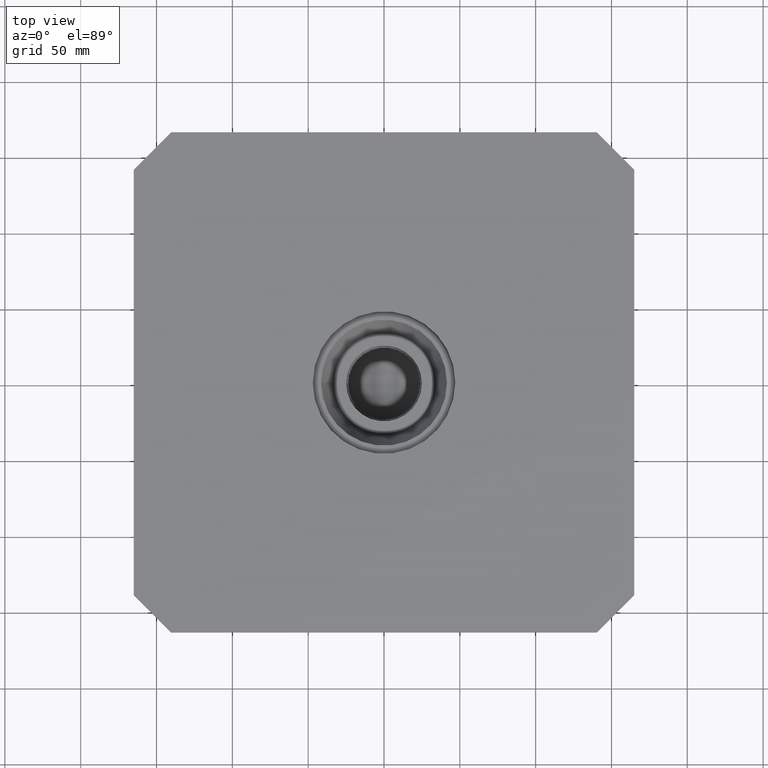
[diagram: clean part render]
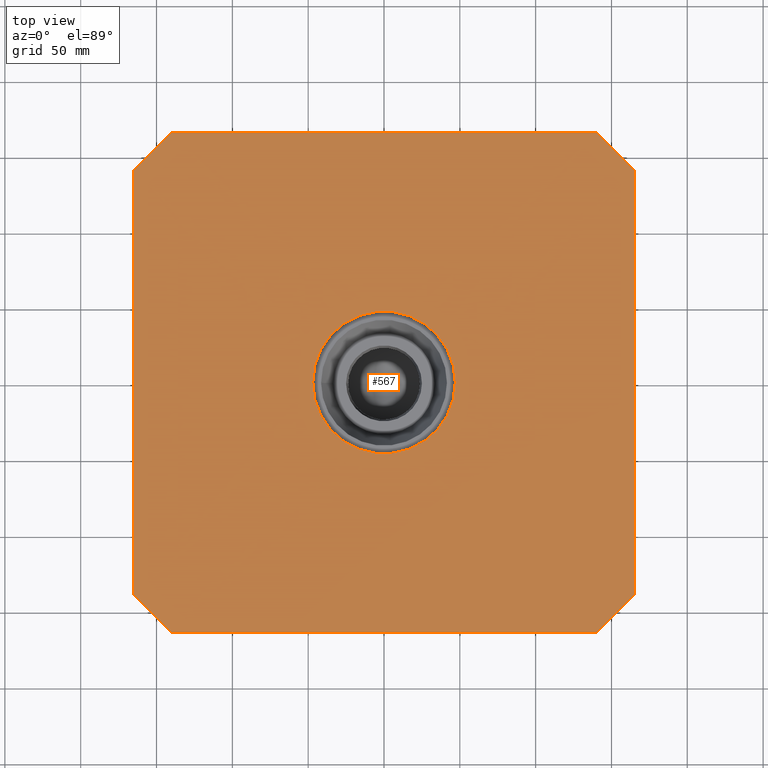
[diagram: same view with one face highlighted and labeled with its STEP entity id]
A machine part, top view. The second image highlights one B-rep face of the part: STEP entity #567.
In plain terms, the highlighted planar face has unit normal (-0, 0, 1).
Its self-contained STEP definition (entity closure, byte-faithful):
#33=CIRCLE('',#590,47.);
#183=ORIENTED_EDGE('',*,*,#215,.F.);
#184=ORIENTED_EDGE('',*,*,#192,.T.);
#185=ORIENTED_EDGE('',*,*,#196,.T.);
#186=ORIENTED_EDGE('',*,*,#199,.T.);
#187=ORIENTED_EDGE('',*,*,#202,.T.);
#188=ORIENTED_EDGE('',*,*,#205,.T.);
#189=ORIENTED_EDGE('',*,*,#208,.T.);
#190=ORIENTED_EDGE('',*,*,#211,.T.);
#191=ORIENTED_EDGE('',*,*,#216,.T.);
#192=EDGE_CURVE('',#250,#251,#300,.T.);
#196=EDGE_CURVE('',#251,#254,#304,.T.);
#199=EDGE_CURVE('',#254,#256,#307,.T.);
#202=EDGE_CURVE('',#256,#258,#310,.T.);
#205=EDGE_CURVE('',#258,#260,#313,.T.);
#208=EDGE_CURVE('',#260,#262,#316,.T.);
#211=EDGE_CURVE('',#262,#264,#319,.T.);
#215=EDGE_CURVE('',#267,#267,#33,.T.);
#216=EDGE_CURVE('',#264,#250,#322,.T.);
#250=VERTEX_POINT('',#841);
#251=VERTEX_POINT('',#842);
#254=VERTEX_POINT('',#850);
#256=VERTEX_POINT('',#856);
#258=VERTEX_POINT('',#862);
#260=VERTEX_POINT('',#868);
#262=VERTEX_POINT('',#874);
#264=VERTEX_POINT('',#880);
#267=VERTEX_POINT('',#888);
#300=LINE('',#840,#324);
#304=LINE('',#849,#328);
#307=LINE('',#855,#331);
#310=LINE('',#861,#334);
#313=LINE('',#867,#337);
#316=LINE('',#873,#340);
#319=LINE('',#879,#343);
#322=LINE('',#890,#346);
#324=VECTOR('',#662,1000.);
#328=VECTOR('',#668,1000.);
#331=VECTOR('',#673,1000.);
#334=VECTOR('',#678,1000.);
#337=VECTOR('',#683,1000.);
#340=VECTOR('',#688,1000.);
#343=VECTOR('',#693,1000.);
#346=VECTOR('',#704,1000.);
#424=EDGE_LOOP('',(#183));
#425=EDGE_LOOP('',(#184,#185,#186,#187,#188,#189,#190,#191));
#502=FACE_BOUND('',#424,.T.);
#503=FACE_BOUND('',#425,.T.);
#524=PLANE('',#657);
#567=ADVANCED_FACE('',(#502,#503),#524,.T.);
#590=AXIS2_PLACEMENT_3D('',#887,#700,#701);
#657=AXIS2_PLACEMENT_3D('',#989,#836,#837);
#662=DIRECTION('',(0.,-1.,0.));
#668=DIRECTION('',(0.707106781186548,-0.707106781186548,1.35290595589709E-18));
#673=DIRECTION('',(1.,0.,1.91329795144501E-18));
#678=DIRECTION('',(0.707106781186548,0.707106781186548,1.35290595589709E-18));
#683=DIRECTION('',(0.,1.,0.));
#688=DIRECTION('',(-0.707106781186548,0.707106781186548,-1.35290595589709E-18));
#693=DIRECTION('',(-1.,0.,-1.91329795144501E-18));
#700=DIRECTION('',(-1.91329795144501E-18,0.,1.));
#701=DIRECTION('',(1.,0.,1.91329795144501E-18));
#704=DIRECTION('',(-0.707106781186548,-0.707106781186548,-1.35290595589709E-18));
#836=DIRECTION('',(-1.91329795144501E-18,0.,1.));
#837=DIRECTION('',(1.,0.,1.91329795144501E-18));
#840=CARTESIAN_POINT('',(-165.,140.251262658471,1.3));
#841=CARTESIAN_POINT('',(-165.,140.251262658471,1.3));
#842=CARTESIAN_POINT('',(-165.,-140.251262658471,1.3));
#849=CARTESIAN_POINT('',(-165.,-140.251262658471,1.3));
#850=CARTESIAN_POINT('',(-140.251262658471,-165.,1.3));
#855=CARTESIAN_POINT('',(-140.251262658471,-165.,1.3));
#856=CARTESIAN_POINT('',(140.251262658471,-165.,1.3));
#861=CARTESIAN_POINT('',(140.251262658471,-165.,1.3));
#862=CARTESIAN_POINT('',(165.,-140.251262658471,1.3));
#867=CARTESIAN_POINT('',(165.,-140.251262658471,1.3));
#868=CARTESIAN_POINT('',(165.,140.251262658471,1.3));
#873=CARTESIAN_POINT('',(165.,140.251262658471,1.3));
#874=CARTESIAN_POINT('',(140.251262658471,165.,1.3));
#879=CARTESIAN_POINT('',(140.251262658471,165.,1.3));
#880=CARTESIAN_POINT('',(-140.251262658471,165.,1.3));
#887=CARTESIAN_POINT('',(0.,0.,1.3));
#888=CARTESIAN_POINT('',(47.,0.,1.3));
#890=CARTESIAN_POINT('',(-140.251262658471,165.,1.3));
#989=CARTESIAN_POINT('',(170.,170.,1.3));